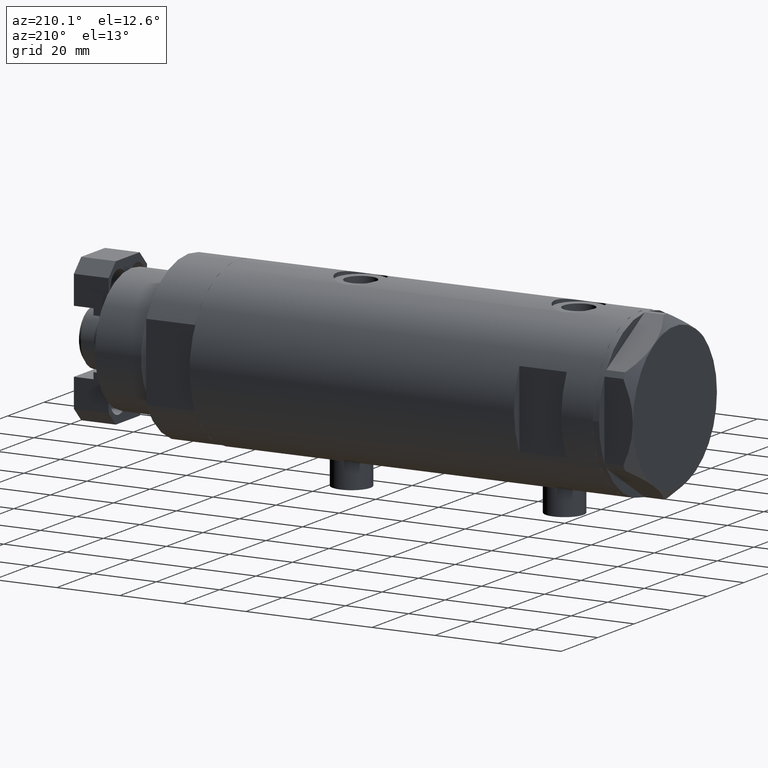
[diagram: clean part render]
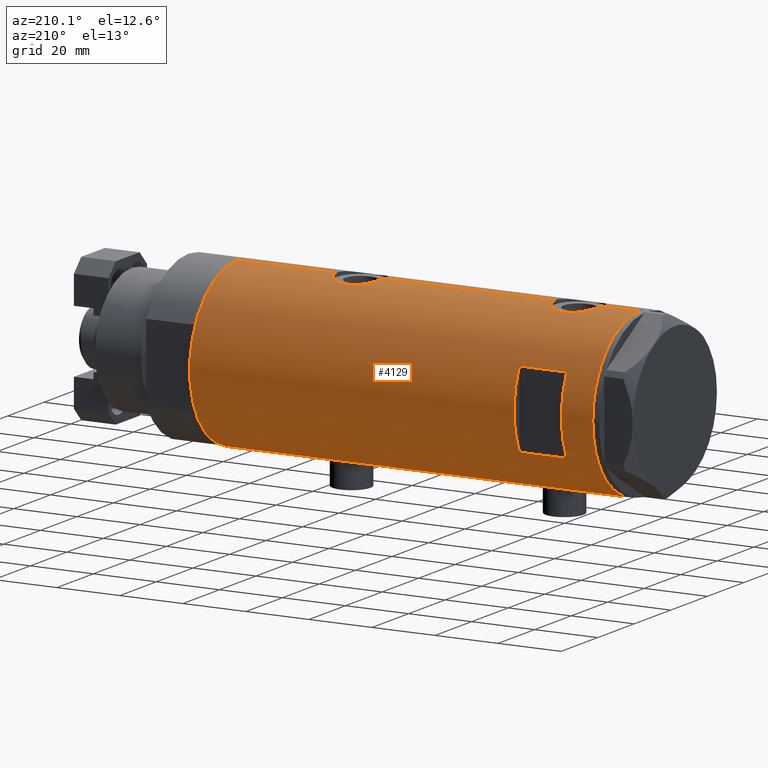
[diagram: same view with one face highlighted and labeled with its STEP entity id]
A machine part, auxiliary view. The second image highlights one B-rep face of the part: STEP entity #4129.
In plain terms, the highlighted cylindrical surface (partial cylindrical patch) has radius 26 mm, axis along (-1, -0, 0).
Its self-contained STEP definition (entity closure, byte-faithful):
#65 = CARTESIAN_POINT ( 'NONE',  ( -25.36894112891957676, 5.694149517195238097, -30.23482505198309056 ) ) ;
#90 = LINE ( 'NONE', #4432, #801 ) ;
#100 = ORIENTED_EDGE ( 'NONE', *, *, #804, .T. ) ;
#187 = CARTESIAN_POINT ( 'NONE',  ( 24.89484527721569052, 7.499778575171893280, -25.24550805482937932 ) ) ;
#215 = CARTESIAN_POINT ( 'NONE',  ( 25.41763780493360514, 5.474943943663459933, -19.61823686211066686 ) ) ;
#227 = VECTOR ( 'NONE', #1800, 1000.000000000000000 ) ;
#262 = CARTESIAN_POINT ( 'NONE',  ( -25.52242378584899285, 4.965907353613394193, 43.76719602921738783 ) ) ;
#276 = CARTESIAN_POINT ( 'NONE',  ( 24.95233689475078265, 7.306396477445174398, -26.46103813146666184 ) ) ;
#277 = CARTESIAN_POINT ( 'NONE',  ( 0.000000000000000000, 0.000000000000000000, -63.95000000000000995 ) ) ;
#288 = CARTESIAN_POINT ( 'NONE',  ( 26.00000000000000355, 2.393127611988522640E-16, 36.95000000000000284 ) ) ;
#315 = CARTESIAN_POINT ( 'NONE',  ( 25.03487248886524696, 7.018875226450792759, 41.79576782607938412 ) ) ;
#373 = CARTESIAN_POINT ( 'NONE',  ( 25.48882460966379782, 5.133289275481216940, 38.97656476402091386 ) ) ;
#375 = CARTESIAN_POINT ( 'NONE',  ( -25.43062364804612230, 5.412314182902753679, 36.81772351419071043 ) ) ;
#388 = CARTESIAN_POINT ( 'NONE',  ( -25.96182217530153480, 1.422664245316465736, -21.56064726907610307 ) ) ;
#400 = CARTESIAN_POINT ( 'NONE',  ( 24.90951684770588059, 7.451587374037537792, 43.46604395478804861 ) ) ;
#402 = CARTESIAN_POINT ( 'NONE',  ( -25.95208098418916620, 1.628413954368980399, 33.90193207829285882 ) ) ;
#431 = CARTESIAN_POINT ( 'NONE',  ( 25.98255381630415428, 0.9836221648041301169, 51.88933098058191007 ) ) ;
#433 = CARTESIAN_POINT ( 'NONE',  ( -25.31518616157687163, 5.930210831981637121, 37.93412882792974727 ) ) ;
#454 = CARTESIAN_POINT ( 'NONE',  ( 12.12435565298214080, 23.00000000000000355, 53.94999999999999574 ) ) ;
#484 = EDGE_CURVE ( 'NONE', #2929, #2071, #1549, .T. ) ;
#487 = CARTESIAN_POINT ( 'NONE',  ( -25.81206132723605506, 3.139065735901517495, 34.53021230639124894 ) ) ;
#521 = EDGE_CURVE ( 'NONE', #1303, #575, #2935, .T. ) ;
#529 = CARTESIAN_POINT ( 'NONE',  ( 12.12435565298213724, 23.00000000000000355, 38.94999999999999574 ) ) ;
#548 = DIRECTION ( 'NONE',  ( 0.000000000000000000, 0.000000000000000000, 1.000000000000000000 ) ) ;
#551 = CARTESIAN_POINT ( 'NONE',  ( -25.98057228346869252, 1.024901789261879914, -33.81880585854828070 ) ) ;
#572 = CARTESIAN_POINT ( 'NONE',  ( -26.00000000000000355, 3.184081677783118585E-15, -63.95000000000000995 ) ) ;
#575 = VERTEX_POINT ( 'NONE', #288 ) ;
#588 = VECTOR ( 'NONE', #4623, 1000.000000000000000 ) ;
#612 = CARTESIAN_POINT ( 'NONE',  ( 25.01140519645288407, 7.101774040639619479, -27.17392235700823733 ) ) ;
#617 = AXIS2_PLACEMENT_3D ( 'NONE', #778, #5089, #3336 ) ;
#641 = CARTESIAN_POINT ( 'NONE',  ( 25.97197502027376004, 1.230965554787594396, -17.34759175501625350 ) ) ;
#642 = CYLINDRICAL_SURFACE ( 'NONE', #5223, 26.00000000000000355 ) ;
#645 = CARTESIAN_POINT ( 'NONE',  ( -25.38675822915648084, 5.615881323213569587, -24.87693218337989975 ) ) ;
#682 = CARTESIAN_POINT ( 'NONE',  ( 26.00000000000000355, 6.604469597105595072E-16, -32.25000000000000000 ) ) ;
#737 = CARTESIAN_POINT ( 'NONE',  ( 25.20855488770172315, 6.367749707222637667, 48.42002223040957887 ) ) ;
#764 = CARTESIAN_POINT ( 'NONE',  ( 25.89067367629246164, 2.424883365422555670, 51.56405204505168172 ) ) ;
#767 = CARTESIAN_POINT ( 'NONE',  ( -25.90661719257679252, 2.209805098346976138, 45.79988745781523107 ) ) ;
#777 = CARTESIAN_POINT ( 'NONE',  ( -25.31738333113901263, 5.918941409682878962, -25.63242077527679186 ) ) ;
#778 = CARTESIAN_POINT ( 'NONE',  ( 0.000000000000000000, 0.000000000000000000, 38.94999999999999574 ) ) ;
#801 = VECTOR ( 'NONE', #548, 1000.000000000000000 ) ;
#804 = EDGE_CURVE ( 'NONE', #2929, #4831, #4205, .T. ) ;
#805 = CARTESIAN_POINT ( 'NONE',  ( 24.89471231507667426, 7.500219916954788957, -24.26121773116972236 ) ) ;
#824 = CARTESIAN_POINT ( 'NONE',  ( 25.59528664075984850, 4.573671112500303337, 38.50090496483275615 ) ) ;
#838 = CARTESIAN_POINT ( 'NONE',  ( 26.00000000000000355, 0.000000000000000000, 63.95000000000000995 ) ) ;
#850 = CARTESIAN_POINT ( 'NONE',  ( 24.89471231507667071, 7.500219916954787180, 44.93878226883029470 ) ) ;
#852 = CARTESIAN_POINT ( 'NONE',  ( -25.99999999999999289, 0.2043916521039015888, 33.70000000000000284 ) ) ;
#865 = CARTESIAN_POINT ( 'NONE',  ( -25.49884629689154636, 5.081547904122037274, -31.29439805696091526 ) ) ;
#916 = ORIENTED_EDGE ( 'NONE', *, *, #2401, .T. ) ;
#928 = ORIENTED_EDGE ( 'NONE', *, *, #4441, .F. ) ;
#950 = CARTESIAN_POINT ( 'NONE',  ( 26.00000000000000355, 0.000000000000000000, -63.95000000000000995 ) ) ;
#956 = CARTESIAN_POINT ( 'NONE',  ( -12.12435565298214080, 23.00000000000000355, 38.94999999999999574 ) ) ;
#1019 = CARTESIAN_POINT ( 'NONE',  ( -26.00000000000000355, 3.184081677783118585E-15, -63.95000000000000995 ) ) ;
#1038 = EDGE_CURVE ( 'NONE', #1809, #3813, #3107, .T. ) ;
#1043 = CARTESIAN_POINT ( 'NONE',  ( 25.89067367629245808, 2.424883365422559223, -17.63594795494831402 ) ) ;
#1054 = CARTESIAN_POINT ( 'NONE',  ( 26.00000000000000355, 2.393127611988522640E-16, 36.95000000000000284 ) ) ;
#1066 = VECTOR ( 'NONE', #3114, 1000.000000000000000 ) ;
#1088 = CARTESIAN_POINT ( 'NONE',  ( 25.92799636947105313, 1.948138538329398317, 37.20322312211785487 ) ) ;
#1102 = CARTESIAN_POINT ( 'NONE',  ( 25.93077501166307641, 1.957027822413550888, -17.49302141437590663 ) ) ;
#1106 = CARTESIAN_POINT ( 'NONE',  ( -25.81251897318926680, 3.135439098787736523, -22.22800821914827907 ) ) ;
#1155 = ORIENTED_EDGE ( 'NONE', *, *, #5300, .F. ) ;
#1171 = CARTESIAN_POINT ( 'NONE',  ( 25.01140519645289828, 7.101774040639625696, 42.02607764299177973 ) ) ;
#1188 = DIRECTION ( 'NONE',  ( 0.000000000000000000, 0.000000000000000000, 1.000000000000000000 ) ) ;
#1208 = CARTESIAN_POINT ( 'NONE',  ( -25.42927140605240766, 5.422776733968210472, -24.51556003986717513 ) ) ;
#1228 = CARTESIAN_POINT ( 'NONE',  ( 25.00820649268565887, 7.115348876445586335, 46.87184000475451739 ) ) ;
#1231 = CARTESIAN_POINT ( 'NONE',  ( -25.45277932469921822, 5.307477387851097461, 36.64327199834690418 ) ) ;
#1236 = CARTESIAN_POINT ( 'NONE',  ( 25.86510134953875450, 2.654921787384012521, -31.76867061694904493 ) ) ;
#1240 = CARTESIAN_POINT ( 'NONE',  ( -25.28673619335055633, 6.048783215285168602, -29.27550990348179027 ) ) ;
#1250 = EDGE_CURVE ( 'NONE', #1418, #1976, #2312, .T. ) ;
#1268 = ORIENTED_EDGE ( 'NONE', *, *, #1250, .F. ) ;
#1282 = CARTESIAN_POINT ( 'NONE',  ( 25.11254978876589661, 6.737777305585160192, 41.11974648253589493 ) ) ;
#1284 = CARTESIAN_POINT ( 'NONE',  ( -25.33346170681504717, 5.849967696906719361, 42.15947052099510017 ) ) ;
#1296 = CARTESIAN_POINT ( 'NONE',  ( -25.38875076695535782, 5.605452563035137281, -30.42185900824106426 ) ) ;
#1303 = VERTEX_POINT ( 'NONE', #2009 ) ;
#1344 = CARTESIAN_POINT ( 'NONE',  ( -25.67176285215957421, 4.128807479817785620, 35.24008401548878311 ) ) ;
#1382 = CARTESIAN_POINT ( 'NONE',  ( 0.000000000000000000, 0.000000000000000000, 53.94999999999999574 ) ) ;
#1393 = EDGE_CURVE ( 'NONE', #3490, #2633, #3933, .T. ) ;
#1412 = CARTESIAN_POINT ( 'NONE',  ( -25.85449082491264861, 2.772892880050691122, -33.26609297485325101 ) ) ;
#1416 = LINE ( 'NONE', #950, #1066 ) ;
#1418 = VERTEX_POINT ( 'NONE', #838 ) ;
#1454 = DIRECTION ( 'NONE',  ( 0.000000000000000000, 0.000000000000000000, 1.000000000000000000 ) ) ;
#1474 = CARTESIAN_POINT ( 'NONE',  ( 25.78997056644824681, 3.329333406239041615, -18.01165191566153823 ) ) ;
#1506 = CARTESIAN_POINT ( 'NONE',  ( 25.98255381630415783, 0.9836221648041323373, -17.31066901941807501 ) ) ;
#1536 = CARTESIAN_POINT ( 'NONE',  ( 25.30960479024497900, 5.958491152160520166, -29.33139677679963953 ) ) ;
#1541 = CARTESIAN_POINT ( 'NONE',  ( -25.92257874449350297, 2.014648337067150408, -21.73003581636323389 ) ) ;
#1549 = LINE ( 'NONE', #3377, #3042 ) ;
#1553 = DIRECTION ( 'NONE',  ( -0.000000000000000000, -0.000000000000000000, -1.000000000000000000 ) ) ;
#1566 = CARTESIAN_POINT ( 'NONE',  ( 26.00000000000000355, 0.000000000000000000, -63.95000000000000995 ) ) ;
#1590 = AXIS2_PLACEMENT_3D ( 'NONE', #1382, #3536, #3112 ) ;
#1593 = CARTESIAN_POINT ( 'NONE',  ( 24.97016856345952007, 7.245430721349214842, -26.70303040919391435 ) ) ;
#1636 = CARTESIAN_POINT ( 'NONE',  ( -26.00000000000000355, -2.813058302341337106E-16, 46.20000000000000284 ) ) ;
#1649 = VERTEX_POINT ( 'NONE', #2892 ) ;
#1650 = CARTESIAN_POINT ( 'NONE',  ( -25.67095236150574067, 4.133649689219789813, -22.94464771725742125 ) ) ;
#1671 = CARTESIAN_POINT ( 'NONE',  ( -25.23757896588370642, 6.250168635417626462, -28.05675308410501501 ) ) ;
#1689 = CARTESIAN_POINT ( 'NONE',  ( 24.96662810169870284, 7.257932614256869641, 46.40297309526737024 ) ) ;
#1692 = CARTESIAN_POINT ( 'NONE',  ( -25.59680708126580129, 4.563450671387941249, 35.67456050020032166 ) ) ;
#1701 = CARTESIAN_POINT ( 'NONE',  ( -25.95015815577422558, 1.621168830448742382, -21.61041429560181371 ) ) ;
#1719 = CARTESIAN_POINT ( 'NONE',  ( -25.57167265924276123, 4.701795585128874855, 35.82723711689968837 ) ) ;
#1720 = CIRCLE ( 'NONE', #617, 26.00000000000000355 ) ;
#1751 = CARTESIAN_POINT ( 'NONE',  ( -25.28915991580759837, 6.038390257328908106, 41.57552651146907863 ) ) ;
#1774 = CARTESIAN_POINT ( 'NONE',  ( -25.27696731428695998, 6.089059008147561514, 41.37416306959482881 ) ) ;
#1788 = CARTESIAN_POINT ( 'NONE',  ( -25.43062364804612230, 5.412314182902756343, -30.78227648580932652 ) ) ;
#1800 = DIRECTION ( 'NONE',  ( 0.000000000000000000, 0.000000000000000000, 1.000000000000000000 ) ) ;
#1801 = CARTESIAN_POINT ( 'NONE',  ( -25.85449082491264861, 2.772892880050687126, 34.33390702514679305 ) ) ;
#1809 = VERTEX_POINT ( 'NONE', #3950 ) ;
#1840 = CARTESIAN_POINT ( 'NONE',  ( -25.31518616157687873, 5.930210831981640673, -29.66587117207026836 ) ) ;
#1900 = ORIENTED_EDGE ( 'NONE', *, *, #1393, .F. ) ;
#1903 = CARTESIAN_POINT ( 'NONE',  ( 24.90951684770588415, 7.451587374037533351, -25.73395604521198621 ) ) ;
#1921 = ORIENTED_EDGE ( 'NONE', *, *, #2924, .F. ) ;
#1931 = CARTESIAN_POINT ( 'NONE',  ( 25.08669247833292104, 6.831361936037323446, -21.64462260596211252 ) ) ;
#1936 = CARTESIAN_POINT ( 'NONE',  ( 0.000000000000000000, 0.000000000000000000, -63.95000000000000995 ) ) ;
#1942 = CARTESIAN_POINT ( 'NONE',  ( 25.98569222077104257, 0.9879514382926377625, 36.99918153312438562 ) ) ;
#1962 = CARTESIAN_POINT ( 'NONE',  ( 25.72923282622328855, 3.765147152416742138, -31.25485575784708203 ) ) ;
#1974 = CARTESIAN_POINT ( 'NONE',  ( -25.81251897318925614, 3.135439098787738743, 45.37199178085171525 ) ) ;
#1976 = VERTEX_POINT ( 'NONE', #3164 ) ;
#1990 = CARTESIAN_POINT ( 'NONE',  ( 25.20855488770173380, 6.367749707222643885, -20.77997776959044174 ) ) ;
#2009 = CARTESIAN_POINT ( 'NONE',  ( 26.00000000000000355, -3.975025925197986111E-20, -17.25000000000000000 ) ) ;
#2018 = CARTESIAN_POINT ( 'NONE',  ( 25.92799636947105668, 1.948138538329396319, -31.99677687788214797 ) ) ;
#2060 = CARTESIAN_POINT ( 'NONE',  ( 25.38117076385347914, 5.641057083563588925, 49.39856579741849174 ) ) ;
#2071 = VERTEX_POINT ( 'NONE', #682 ) ;
#2118 = CARTESIAN_POINT ( 'NONE',  ( 25.52590365620542912, 4.955152228772151446, 50.10123727588237585 ) ) ;
#2129 = CARTESIAN_POINT ( 'NONE',  ( -25.57189498399056049, 4.707763994471527269, -23.51909718944452976 ) ) ;
#2159 = EDGE_CURVE ( 'NONE', #2633, #4444, #5418, .T. ) ;
#2173 = EDGE_LOOP ( 'NONE', ( #100, #2402, #2870, #3005, #4883, #916, #1268, #928, #3564, #4806, #1921, #3836 ) ) ;
#2175 = CARTESIAN_POINT ( 'NONE',  ( 25.30960479024496834, 5.958491152160524607, 39.86860322320038819 ) ) ;
#2205 = CARTESIAN_POINT ( 'NONE',  ( -25.23766275406409321, 6.249830297096026221, 40.36191904555118271 ) ) ;
#2239 = CARTESIAN_POINT ( 'NONE',  ( -25.57167265924275412, 4.701795585128873967, -31.77276288310035213 ) ) ;
#2291 = VERTEX_POINT ( 'NONE', #3865 ) ;
#2312 = CIRCLE ( 'NONE', #3579, 26.00000000000000355 ) ;
#2338 = DIRECTION ( 'NONE',  ( 0.000000000000000000, 0.000000000000000000, 1.000000000000000000 ) ) ;
#2401 = EDGE_CURVE ( 'NONE', #5503, #1976, #4898, .T. ) ;
#2402 = ORIENTED_EDGE ( 'NONE', *, *, #3577, .T. ) ;
#2404 = CARTESIAN_POINT ( 'NONE',  ( 0.000000000000000000, 0.000000000000000000, 63.95000000000000995 ) ) ;
#2429 = CARTESIAN_POINT ( 'NONE',  ( -25.57189498399055338, 4.707763994471528157, 44.08090281055548587 ) ) ;
#2445 = CARTESIAN_POINT ( 'NONE',  ( 25.59528664075984139, 4.573671112500301561, -30.69909503516727156 ) ) ;
#2457 = CARTESIAN_POINT ( 'NONE',  ( 25.27545867390325185, 6.096774941222090405, 48.82477406957965371 ) ) ;
#2482 = CARTESIAN_POINT ( 'NONE',  ( 25.72923282622329211, 3.765147152416744802, 37.94514424215291371 ) ) ;
#2514 = CARTESIAN_POINT ( 'NONE',  ( -25.96182217530152769, 1.422664245316465070, 46.03935273092390190 ) ) ;
#2522 = CARTESIAN_POINT ( 'NONE',  ( -25.28915991580759837, 6.038390257328908994, -26.02447348853095122 ) ) ;
#2549 = CARTESIAN_POINT ( 'NONE',  ( 25.78922176490238627, 3.335318700939508663, -31.48550568766476232 ) ) ;
#2566 = CARTESIAN_POINT ( 'NONE',  ( 25.72868876879096689, 3.768709330223694920, 50.95267486870066165 ) ) ;
#2568 = CARTESIAN_POINT ( 'NONE',  ( -25.72087293759780380, 3.814831448865741770, 34.98261705172143365 ) ) ;
#2599 = CARTESIAN_POINT ( 'NONE',  ( -25.28673619335055278, 6.048783215285168602, 38.32449009651820404 ) ) ;
#2633 = VERTEX_POINT ( 'NONE', #454 ) ;
#2644 = CARTESIAN_POINT ( 'NONE',  ( -26.00000000000000355, 3.184077527325983904E-15, -33.90000000000001279 ) ) ;
#2811 = CARTESIAN_POINT ( 'NONE',  ( 25.63006864069250668, 4.375159448492144776, -30.84654411758883086 ) ) ;
#2817 = CARTESIAN_POINT ( 'NONE',  ( -25.72105193281916513, 3.813738527046907745, -22.68166308900567785 ) ) ;
#2828 = CARTESIAN_POINT ( 'NONE',  ( 25.88814720404043257, 2.420758939209243898, 37.34711713171546421 ) ) ;
#2841 = CARTESIAN_POINT ( 'NONE',  ( 26.00000000000001066, 0.2455784580650491045, -17.25000000000000355 ) ) ;
#2842 = DIRECTION ( 'NONE',  ( 1.000000000000000000, 0.000000000000000000, 0.000000000000000000 ) ) ;
#2870 = ORIENTED_EDGE ( 'NONE', *, *, #1038, .F. ) ;
#2892 = CARTESIAN_POINT ( 'NONE',  ( 26.00000000000000355, -3.975025925197986111E-20, 51.95000000000000284 ) ) ;
#2896 = ORIENTED_EDGE ( 'NONE', *, *, #2159, .F. ) ;
#2912 = DIRECTION ( 'NONE',  ( 0.000000000000000000, 0.000000000000000000, 1.000000000000000000 ) ) ;
#2914 = CARTESIAN_POINT ( 'NONE',  ( 24.97016856345953073, 7.245430721349219283, 42.49696959080609560 ) ) ;
#2924 = EDGE_CURVE ( 'NONE', #2071, #1303, #4994, .T. ) ;
#2929 = VERTEX_POINT ( 'NONE', #1566 ) ;
#2930 = ORIENTED_EDGE ( 'NONE', *, *, #3232, .F. ) ;
#2935 = LINE ( 'NONE', #3319, #588 ) ;
#2938 = CARTESIAN_POINT ( 'NONE',  ( -25.95015815577423268, 1.621168830448741938, 45.98958570439819482 ) ) ;
#2949 = CARTESIAN_POINT ( 'NONE',  ( -25.99009688862344092, 0.8219492608955333290, -21.44084060773424838 ) ) ;
#2973 = CARTESIAN_POINT ( 'NONE',  ( 25.11254978876590016, 6.737777305585156640, -28.08025351746412213 ) ) ;
#3005 = ORIENTED_EDGE ( 'NONE', *, *, #3161, .T. ) ;
#3017 = CARTESIAN_POINT ( 'NONE',  ( 25.17424625143662453, 6.506691718592097828, 40.68758373966274178 ) ) ;
#3019 = CARTESIAN_POINT ( 'NONE',  ( -25.92432690655986960, 2.018143994254070872, 34.02070577177285315 ) ) ;
#3029 = CARTESIAN_POINT ( 'NONE',  ( -25.67176285215958842, 4.128807479817787396, -32.35991598451124673 ) ) ;
#3042 = VECTOR ( 'NONE', #2912, 1000.000000000000000 ) ;
#3047 = CARTESIAN_POINT ( 'NONE',  ( -25.99759026373432036, 0.4091325989570642196, 33.71000109955100754 ) ) ;
#3074 = CARTESIAN_POINT ( 'NONE',  ( -25.31738333113901973, 5.918941409682879851, 41.96757922472325220 ) ) ;
#3085 = CARTESIAN_POINT ( 'NONE',  ( -26.00000000000000355, 3.184077527325983904E-15, -33.90000000000001279 ) ) ;
#3107 = B_SPLINE_CURVE_WITH_KNOTS ( 'NONE', 3,
 ( #4954, #5408, #2949, #388, #1701, #1541, #5513, #3364, #1106, #2817, #1650, #2129, #3846, #1208, #645, #4665, #777, #2522, #4249, #5565, #3821, #1671, #3390, #1240, #1840, #65, #1296, #1788, #5594, #865, #4438, #2239, #4799, #3029, #4769, #5281, #1412, #5171, #4358, #551, #4410, #3874, #3506, #3085 ),
 .UNSPECIFIED., .F., .F.,
 ( 4, 2, 2, 2, 2, 2, 2, 2, 2, 2, 2, 2, 2, 2, 2, 2, 2, 2, 2, 2, 2, 4 ),
 ( 9.607684875373755967E-19, 0.001225774033668407042, 0.001838661050502609588, 0.002451548067336812350, 0.003677322101005213971, 0.004903096134673616026, 0.006128870168342016346, 0.007354644202010416666, 0.007967531218844617694, 0.008580418235678816119, 0.009806192269347225113, 0.01103196630301563584, 0.01225774033668404484, 0.01287062735351825020, 0.01348351437035245383, 0.01409640138718665919, 0.01470928840402086456, 0.01593506243768925273, 0.01716083647135764612, 0.01838661050502603603, 0.01899949752186023272, 0.01961238453869442941 ),
 .UNSPECIFIED. ) ;
#3112 = DIRECTION ( 'NONE',  ( 1.000000000000000000, -5.329070518200751394E-15, 0.000000000000000000 ) ) ;
#3114 = DIRECTION ( 'NONE',  ( 0.000000000000000000, 0.000000000000000000, 1.000000000000000000 ) ) ;
#3129 = CARTESIAN_POINT ( 'NONE',  ( -12.12435565298214080, 23.00000000000000355, 53.94999999999999574 ) ) ;
#3161 = EDGE_CURVE ( 'NONE', #1809, #2291, #3555, .T. ) ;
#3164 = CARTESIAN_POINT ( 'NONE',  ( -26.00000000000000355, 3.184081677783118585E-15, 63.95000000000000995 ) ) ;
#3227 = CARTESIAN_POINT ( 'NONE',  ( 25.88814720404043968, 2.420758939209242566, -31.85288286828453508 ) ) ;
#3232 = EDGE_CURVE ( 'NONE', #4010, #3490, #90, .T. ) ;
#3238 = CARTESIAN_POINT ( 'NONE',  ( 25.94484652078419273, 1.709678645892021009, 37.14334653240825901 ) ) ;
#3254 = CARTESIAN_POINT ( 'NONE',  ( 24.96662810169869218, 7.257932614256870529, -22.79702690473265392 ) ) ;
#3273 = DIRECTION ( 'NONE',  ( 1.000000000000000000, 0.000000000000000000, 0.000000000000000000 ) ) ;
#3319 = CARTESIAN_POINT ( 'NONE',  ( 26.00000000000000355, 0.000000000000000000, -63.95000000000000995 ) ) ;
#3320 = CARTESIAN_POINT ( 'NONE',  ( 25.11550258961939974, 6.725017566862028673, 47.77928477806020169 ) ) ;
#3336 = DIRECTION ( 'NONE',  ( -1.000000000000000000, -5.329070518200751394E-15, 0.000000000000000000 ) ) ;
#3340 = FACE_BOUND ( 'NONE', #4663, .T. ) ;
#3351 = CARTESIAN_POINT ( 'NONE',  ( 25.41763780493359803, 5.474943943663455492, 49.58176313788934664 ) ) ;
#3364 = CARTESIAN_POINT ( 'NONE',  ( -25.85406084573622110, 2.777003695811654183, -22.03587158673905222 ) ) ;
#3366 = EDGE_CURVE ( 'NONE', #5503, #2291, #3715, .T. ) ;
#3377 = CARTESIAN_POINT ( 'NONE',  ( 26.00000000000000355, 0.000000000000000000, -63.95000000000000995 ) ) ;
#3378 = CARTESIAN_POINT ( 'NONE',  ( 25.38132706741445688, 5.649034551923787895, 39.49268047185955766 ) ) ;
#3390 = CARTESIAN_POINT ( 'NONE',  ( -25.24784248027029676, 6.209126813737964490, -28.47268161688059962 ) ) ;
#3410 = CARTESIAN_POINT ( 'NONE',  ( 25.99652140603931016, 0.4914164889130518965, 51.93796820480458365 ) ) ;
#3441 = CARTESIAN_POINT ( 'NONE',  ( -25.24766879991037172, 6.209837761082653174, 40.76849569029695886 ) ) ;
#3466 = CARTESIAN_POINT ( 'NONE',  ( -25.98789693408479451, 0.8193301824841956460, 33.75051019734654290 ) ) ;
#3490 = VERTEX_POINT ( 'NONE', #3129 ) ;
#3496 = CARTESIAN_POINT ( 'NONE',  ( -25.98057228346870673, 1.024901789261881913, 33.78119414145175625 ) ) ;
#3506 = CARTESIAN_POINT ( 'NONE',  ( -25.99999999999999289, 0.2043916521039002843, -33.90000000000000568 ) ) ;
#3521 = CARTESIAN_POINT ( 'NONE',  ( -25.49884629689154281, 5.081547904122033721, 36.30560194303910748 ) ) ;
#3536 = DIRECTION ( 'NONE',  ( -0.000000000000000000, -0.000000000000000000, -1.000000000000000000 ) ) ;
#3555 = LINE ( 'NONE', #572, #4184 ) ;
#3556 = CARTESIAN_POINT ( 'NONE',  ( -26.00000000000000355, 3.184081677783118585E-15, -63.95000000000000995 ) ) ;
#3564 = ORIENTED_EDGE ( 'NONE', *, *, #5542, .F. ) ;
#3577 = EDGE_CURVE ( 'NONE', #4831, #3813, #4899, .T. ) ;
#3579 = AXIS2_PLACEMENT_3D ( 'NONE', #2404, #3620, #3273 ) ;
#3620 = DIRECTION ( 'NONE',  ( 0.000000000000000000, 0.000000000000000000, 1.000000000000000000 ) ) ;
#3629 = CARTESIAN_POINT ( 'NONE',  ( 25.31017500740586357, 5.951503630041866444, -20.17950407362598853 ) ) ;
#3655 = CARTESIAN_POINT ( 'NONE',  ( 25.72868876879096689, 3.768709330223691811, -18.24732513129934830 ) ) ;
#3687 = CARTESIAN_POINT ( 'NONE',  ( 25.48882460966380492, 5.133289275481214275, -30.22343523597908188 ) ) ;
#3711 = CARTESIAN_POINT ( 'NONE',  ( 25.38132706741445332, 5.649034551923782566, -29.70731952814044874 ) ) ;
#3715 = B_SPLINE_CURVE_WITH_KNOTS ( 'NONE', 3,
 ( #1636, #4208, #5077, #2514, #2938, #4652, #767, #4998, #1974, #4571, #5419, #2429, #262, #5446, #4709, #1284, #3074, #1751, #1774, #3441, #2205, #5607, #5213, #2599, #433, #5162, #4733, #375, #1231, #3521, #3835, #1719, #1692, #1344, #2568, #487, #1801, #3019, #402, #3496, #3466, #3047, #852, #4762 ),
 .UNSPECIFIED., .F., .F.,
 ( 4, 2, 2, 2, 2, 2, 2, 2, 2, 2, 2, 2, 2, 2, 2, 2, 2, 2, 2, 2, 2, 4 ),
 ( 2.732276935479321607E-19, 0.001225774033668403139, 0.001838661050502602649, 0.002451548067336802375, 0.003677322101005202262, 0.004903096134673601281, 0.006128870168342001601, 0.007354644202010401054, 0.007967531218844600346, 0.008580418235678800506, 0.009806192269347199092, 0.01103196630301559768, 0.01225774033668399626, 0.01287062735351819469, 0.01348351437035239485, 0.01409640138718659501, 0.01470928840402079343, 0.01593506243768920069, 0.01716083647135761142, 0.01838661050502602215, 0.01899949752186022578, 0.01961238453869442941 ),
 .UNSPECIFIED. ) ;
#3737 = CARTESIAN_POINT ( 'NONE',  ( 25.00820649268565532, 7.115348876445588111, -22.32815999524549611 ) ) ;
#3778 = CARTESIAN_POINT ( 'NONE',  ( 25.97197502027376004, 1.230965554787593952, 51.85240824498373513 ) ) ;
#3813 = VERTEX_POINT ( 'NONE', #2644 ) ;
#3821 = CARTESIAN_POINT ( 'NONE',  ( -25.23766275406408965, 6.249830297096024445, -27.23808095444882582 ) ) ;
#3833 = CARTESIAN_POINT ( 'NONE',  ( 25.78997056644825392, 3.329333406239039839, 51.18834808433847883 ) ) ;
#3835 = CARTESIAN_POINT ( 'NONE',  ( -25.52275868012767646, 4.960454986366448438, 36.14238370593368188 ) ) ;
#3836 = ORIENTED_EDGE ( 'NONE', *, *, #484, .F. ) ;
#3846 = CARTESIAN_POINT ( 'NONE',  ( -25.52242378584899640, 4.965907353613392416, -23.83280397078263491 ) ) ;
#3858 = VECTOR ( 'NONE', #1553, 1000.000000000000000 ) ;
#3864 = CARTESIAN_POINT ( 'NONE',  ( 25.86510134953875450, 2.654921787384014298, 37.43132938305095792 ) ) ;
#3865 = CARTESIAN_POINT ( 'NONE',  ( -26.00000000000000355, 3.184077527313362130E-15, 33.70000000000000995 ) ) ;
#3874 = CARTESIAN_POINT ( 'NONE',  ( -25.99759026373432391, 0.4091325989570628874, -33.88999890044899388 ) ) ;
#3892 = CARTESIAN_POINT ( 'NONE',  ( 25.08669247833291394, 6.831361936037319893, 47.55537739403791164 ) ) ;
#3933 = CIRCLE ( 'NONE', #1590, 26.00000000000000355 ) ;
#3950 = CARTESIAN_POINT ( 'NONE',  ( -26.00000000000000355, 9.891741702313250758E-16, -21.40000000000000568 ) ) ;
#4004 = CARTESIAN_POINT ( 'NONE',  ( -26.00000000000000355, 3.184081677783118585E-15, -63.95000000000000995 ) ) ;
#4010 = VERTEX_POINT ( 'NONE', #956 ) ;
#4076 = CARTESIAN_POINT ( 'NONE',  ( 25.94484652078418208, 1.709678645892019899, -32.05665346759175804 ) ) ;
#4091 = CARTESIAN_POINT ( 'NONE',  ( 26.00000000000000355, 0.4983968644076020582, 36.95000000000000284 ) ) ;
#4104 = CARTESIAN_POINT ( 'NONE',  ( 25.98569222077105323, 0.9879514382926379845, -32.20081846687561722 ) ) ;
#4129 = ADVANCED_FACE ( 'NONE', ( #3340, #4500 ), #642, .T. ) ;
#4138 = CARTESIAN_POINT ( 'NONE',  ( 25.52465069878074999, 4.952713637311402906, -30.38744860815256388 ) ) ;
#4171 = CARTESIAN_POINT ( 'NONE',  ( 25.03487248886524341, 7.018875226450789206, -27.40423217392064359 ) ) ;
#4184 = VECTOR ( 'NONE', #4406, 1000.000000000000000 ) ;
#4205 = CIRCLE ( 'NONE', #4915, 26.00000000000000355 ) ;
#4206 = CARTESIAN_POINT ( 'NONE',  ( 25.31017500740586357, 5.951503630041860227, 49.02049592637404629 ) ) ;
#4208 = CARTESIAN_POINT ( 'NONE',  ( -26.00000000000000711, 0.4145874687851189289, 46.20000000000000995 ) ) ;
#4249 = CARTESIAN_POINT ( 'NONE',  ( -25.27696731428695642, 6.089059008147562402, -26.22583693040519037 ) ) ;
#4264 = CARTESIAN_POINT ( 'NONE',  ( 25.78922176490237561, 3.335318700939509107, 37.71449431233524052 ) ) ;
#4272 = CARTESIAN_POINT ( 'NONE',  ( 26.00000000000000355, 6.604469597105595072E-16, -32.25000000000000000 ) ) ;
#4289 = CARTESIAN_POINT ( 'NONE',  ( 25.93077501166306575, 1.957027822413552220, 51.70697858562407845 ) ) ;
#4319 = CARTESIAN_POINT ( 'NONE',  ( 24.90976107960111818, 7.450765568638821890, 45.43882869351466525 ) ) ;
#4358 = CARTESIAN_POINT ( 'NONE',  ( -25.95208098418916975, 1.628413954368980843, -33.69806792170715681 ) ) ;
#4406 = DIRECTION ( 'NONE',  ( 0.000000000000000000, 0.000000000000000000, 1.000000000000000000 ) ) ;
#4410 = CARTESIAN_POINT ( 'NONE',  ( -25.98789693408478740, 0.8193301824841957570, -33.84948980265347274 ) ) ;
#4425 = DIRECTION ( 'NONE',  ( 1.000000000000000000, 0.000000000000000000, 0.000000000000000000 ) ) ;
#4432 = CARTESIAN_POINT ( 'NONE',  ( -12.12435565298214080, 23.00000000000000355, -63.95000000000000995 ) ) ;
#4438 = CARTESIAN_POINT ( 'NONE',  ( -25.52275868012767646, 4.960454986366448438, -31.45761629406634086 ) ) ;
#4441 = EDGE_CURVE ( 'NONE', #1649, #1418, #1416, .T. ) ;
#4444 = VERTEX_POINT ( 'NONE', #529 ) ;
#4499 = CARTESIAN_POINT ( 'NONE',  ( 26.00000000000001776, 0.4983968644076017251, -32.25000000000001421 ) ) ;
#4500 = FACE_OUTER_BOUND ( 'NONE', #2173, .T. ) ;
#4532 = CARTESIAN_POINT ( 'NONE',  ( 25.17636585680006078, 6.493453152855879651, -20.98900750337198318 ) ) ;
#4557 = CARTESIAN_POINT ( 'NONE',  ( 26.00000000000000355, -3.975025925197986111E-20, -17.25000000000000000 ) ) ;
#4571 = CARTESIAN_POINT ( 'NONE',  ( -25.72105193281917224, 3.813738527046911297, 44.91833691099433423 ) ) ;
#4605 = VECTOR ( 'NONE', #2338, 1000.000000000000000 ) ;
#4623 = DIRECTION ( 'NONE',  ( 0.000000000000000000, 0.000000000000000000, 1.000000000000000000 ) ) ;
#4624 = CARTESIAN_POINT ( 'NONE',  ( 24.89484527721569762, 7.499778575171895945, 43.95449194517064484 ) ) ;
#4652 = CARTESIAN_POINT ( 'NONE',  ( -25.92257874449351007, 2.014648337067150408, 45.86996418363678174 ) ) ;
#4663 = EDGE_LOOP ( 'NONE', ( #1155, #2896, #1900, #2930 ) ) ;
#4665 = CARTESIAN_POINT ( 'NONE',  ( -25.33346170681503651, 5.849967696906715808, -25.44052947900492967 ) ) ;
#4688 = CARTESIAN_POINT ( 'NONE',  ( 25.27545867390324830, 6.096774941222096622, -20.37522593042036334 ) ) ;
#4707 = CARTESIAN_POINT ( 'NONE',  ( 25.63006864069250668, 4.375159448492148329, 38.35345588241117554 ) ) ;
#4709 = CARTESIAN_POINT ( 'NONE',  ( -25.38675822915648084, 5.615881323213569587, 42.72306781662011588 ) ) ;
#4731 = CARTESIAN_POINT ( 'NONE',  ( 24.95233689475078975, 7.306396477445178839, 42.73896186853335877 ) ) ;
#4733 = CARTESIAN_POINT ( 'NONE',  ( -25.38875076695534716, 5.605452563035134617, 37.17814099175895848 ) ) ;
#4762 = CARTESIAN_POINT ( 'NONE',  ( -26.00000000000000355, 3.184077527313362130E-15, 33.70000000000000995 ) ) ;
#4769 = CARTESIAN_POINT ( 'NONE',  ( -25.72087293759780735, 3.814831448865741326, -32.61738294827859619 ) ) ;
#4799 = CARTESIAN_POINT ( 'NONE',  ( -25.59680708126580129, 4.563450671387943025, -31.92543949979970108 ) ) ;
#4806 = ORIENTED_EDGE ( 'NONE', *, *, #521, .F. ) ;
#4824 = B_SPLINE_CURVE_WITH_KNOTS ( 'NONE', 3,
 ( #1054, #4091, #1942, #3238, #1088, #2828, #3864, #4264, #2482, #4707, #824, #5552, #373, #3378, #2175, #3017, #1282, #315, #1171, #2914, #4731, #400, #4624, #850, #4319, #1689, #1228, #3892, #3320, #5047, #737, #2457, #4206, #2060, #3351, #2118, #5100, #2566, #3833, #764, #4289, #3778, #431, #3410, #5129, #5528 ),
 .UNSPECIFIED., .F., .F.,
 ( 4, 2, 2, 2, 2, 2, 2, 2, 2, 2, 2, 2, 2, 2, 2, 2, 2, 2, 2, 2, 2, 2, 4 ),
 ( 2.323866739619147150E-19, 0.001473395154583068958, 0.002210092731874605497, 0.002946790309166141819, 0.004420185463749206657, 0.005156883041040739510, 0.005893580618332274097, 0.007366975772915325057, 0.008840370927498376885, 0.009577068504789901932, 0.01031376608208142698, 0.01178716123666447707, 0.01326055639124752716, 0.01473395154583057726, 0.01547064912312210404, 0.01620734670041363082, 0.01694404427770515587, 0.01768074185499668438, 0.01915413700957973447, 0.02062753216416278457, 0.02210092731874583813, 0.02283762489603735971, 0.02357432247332888128 ),
 .UNSPECIFIED. ) ;
#4831 = VERTEX_POINT ( 'NONE', #3556 ) ;
#4883 = ORIENTED_EDGE ( 'NONE', *, *, #3366, .F. ) ;
#4898 = LINE ( 'NONE', #4004, #227 ) ;
#4899 = LINE ( 'NONE', #1019, #4605 ) ;
#4915 = AXIS2_PLACEMENT_3D ( 'NONE', #1936, #1454, #4425 ) ;
#4917 = CARTESIAN_POINT ( 'NONE',  ( 24.90976107960111818, 7.450765568638821890, -23.76117130648535891 ) ) ;
#4947 = CARTESIAN_POINT ( 'NONE',  ( 25.99652140603931727, 0.4914164889130551717, -17.26203179519542630 ) ) ;
#4954 = CARTESIAN_POINT ( 'NONE',  ( -26.00000000000000355, 9.891741702313250758E-16, -21.40000000000000568 ) ) ;
#4963 = CARTESIAN_POINT ( 'NONE',  ( -26.00000000000000355, -2.813058302341337106E-16, 46.20000000000000284 ) ) ;
#4979 = CARTESIAN_POINT ( 'NONE',  ( 25.52590365620542556, 4.955152228772148781, -19.09876272411762343 ) ) ;
#4994 = B_SPLINE_CURVE_WITH_KNOTS ( 'NONE', 3,
 ( #4272, #4499, #4104, #4076, #2018, #3227, #1236, #2549, #1962, #2811, #2445, #4138, #3687, #3711, #1536, #5432, #2973, #4171, #612, #1593, #276, #1903, #187, #805, #4917, #3254, #3737, #1931, #5403, #4532, #1990, #4688, #3629, #5370, #215, #4979, #5345, #3655, #1474, #1043, #1102, #641, #1506, #4947, #2841, #4557 ),
 .UNSPECIFIED., .F., .F.,
 ( 4, 2, 2, 2, 2, 2, 2, 2, 2, 2, 2, 2, 2, 2, 2, 2, 2, 2, 2, 2, 2, 2, 4 ),
 ( 6.413325872240687501E-19, 0.001473395154583055080, 0.002210092731874579910, 0.002946790309166104523, 0.004420185463749155483, 0.005156883041040686601, 0.005893580618332217719, 0.007366975772915269546, 0.008840370927498323109, 0.009577068504789844686, 0.01031376608208136626, 0.01178716123666441982, 0.01326055639124747165, 0.01473395154583052175, 0.01547064912312205720, 0.01620734670041358919, 0.01694404427770512117, 0.01768074185499665316, 0.01915413700957970325, 0.02062753216416275681, 0.02210092731874581037, 0.02283762489603733542, 0.02357432247332886047 ),
 .UNSPECIFIED. ) ;
#4998 = CARTESIAN_POINT ( 'NONE',  ( -25.85406084573620689, 2.777003695811653738, 45.56412841326093854 ) ) ;
#5047 = CARTESIAN_POINT ( 'NONE',  ( 25.17636585680005368, 6.493453152855872546, 48.21099249662804453 ) ) ;
#5077 = CARTESIAN_POINT ( 'NONE',  ( -25.99009688862344092, 0.8219492608955323298, 46.15915939226576370 ) ) ;
#5089 = DIRECTION ( 'NONE',  ( -0.000000000000000000, -0.000000000000000000, 1.000000000000000000 ) ) ;
#5100 = CARTESIAN_POINT ( 'NONE',  ( 25.59685363299823280, 4.579266302355747165, 50.40972068102655612 ) ) ;
#5129 = CARTESIAN_POINT ( 'NONE',  ( 25.99999999999999645, 0.2455784580650500204, 51.94999999999998863 ) ) ;
#5162 = CARTESIAN_POINT ( 'NONE',  ( -25.36894112891956965, 5.694149517195234544, 37.36517494801692862 ) ) ;
#5171 = CARTESIAN_POINT ( 'NONE',  ( -25.92432690655986960, 2.018143994254072648, -33.57929422822715537 ) ) ;
#5213 = CARTESIAN_POINT ( 'NONE',  ( -25.24784248027030031, 6.209126813737962713, 39.12731838311943022 ) ) ;
#5223 = AXIS2_PLACEMENT_3D ( 'NONE', #277, #1188, #2842 ) ;
#5281 = CARTESIAN_POINT ( 'NONE',  ( -25.81206132723605151, 3.139065735901513943, -33.06978769360876669 ) ) ;
#5300 = EDGE_CURVE ( 'NONE', #4444, #4010, #1720, .T. ) ;
#5345 = CARTESIAN_POINT ( 'NONE',  ( 25.59685363299822569, 4.579266302355748053, -18.79027931897347514 ) ) ;
#5370 = CARTESIAN_POINT ( 'NONE',  ( 25.38117076385348270, 5.641057083563593366, -19.80143420258153242 ) ) ;
#5403 = CARTESIAN_POINT ( 'NONE',  ( 25.11550258961939619, 6.725017566862034002, -21.42071522193981181 ) ) ;
#5408 = CARTESIAN_POINT ( 'NONE',  ( -26.00000000000000711, 0.4145874687851189844, -21.40000000000000924 ) ) ;
#5418 = LINE ( 'NONE', #5445, #3858 ) ;
#5419 = CARTESIAN_POINT ( 'NONE',  ( -25.67095236150574067, 4.133649689219791590, 44.65535228274259083 ) ) ;
#5432 = CARTESIAN_POINT ( 'NONE',  ( 25.17424625143662809, 6.506691718592095164, -28.51241626033727528 ) ) ;
#5445 = CARTESIAN_POINT ( 'NONE',  ( 12.12435565298214080, 23.00000000000000355, -63.95000000000000995 ) ) ;
#5446 = CARTESIAN_POINT ( 'NONE',  ( -25.42927140605241121, 5.422776733968213136, 43.08443996013281918 ) ) ;
#5503 = VERTEX_POINT ( 'NONE', #4963 ) ;
#5513 = CARTESIAN_POINT ( 'NONE',  ( -25.90661719257678541, 2.209805098346974805, -21.80011254218479877 ) ) ;
#5528 = CARTESIAN_POINT ( 'NONE',  ( 26.00000000000000355, -3.975025925197986111E-20, 51.95000000000000284 ) ) ;
#5542 = EDGE_CURVE ( 'NONE', #575, #1649, #4824, .T. ) ;
#5552 = CARTESIAN_POINT ( 'NONE',  ( 25.52465069878074644, 4.952713637311401129, 38.81255139184744962 ) ) ;
#5565 = CARTESIAN_POINT ( 'NONE',  ( -25.24766879991036816, 6.209837761082655838, -26.83150430970304257 ) ) ;
#5594 = CARTESIAN_POINT ( 'NONE',  ( -25.45277932469921467, 5.307477387851098349, -30.95672800165311500 ) ) ;
#5607 = CARTESIAN_POINT ( 'NONE',  ( -25.23757896588370286, 6.250168635417627350, 39.54324691589501128 ) ) ;